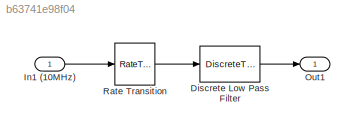
MODEL slx_b63741e98f04
KIND model
BLOCK [DiscreteTransferFcn] Discrete Low Pass Filter
  Denominator = Gd.den{1}
  InputPortMap = u0
  Numerator = Gd.num{1}
  Ports = [1, 1]
  SampleTime = Gd.Ts
BLOCK [Inport] In1 (10MHz)
  IconDisplay = Port number
  SampleTime = 1e-7
BLOCK [Outport] Out1
  IconDisplay = Port number
BLOCK [RateTransition] Rate Transition
LINE Discrete Low Pass Filter:1 -> Out1:1
LINE In1 (10MHz):1 -> Rate Transition:1
LINE Rate Transition:1 -> Discrete Low Pass Filter:1
